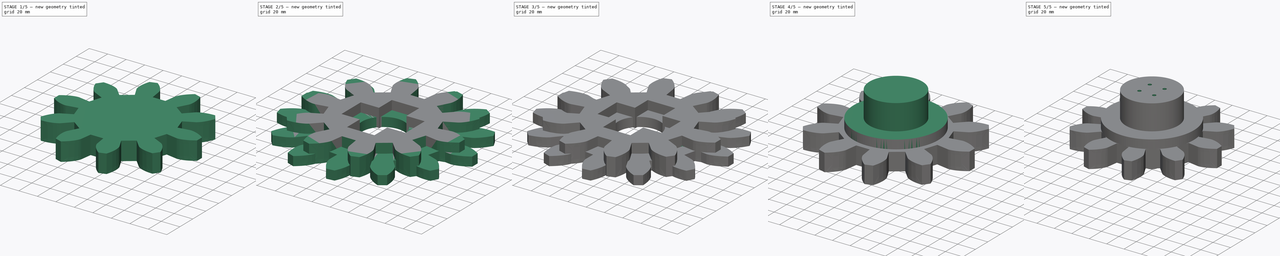
[diagram: build sequence overview — one tinted view per stage of 5, left to right]
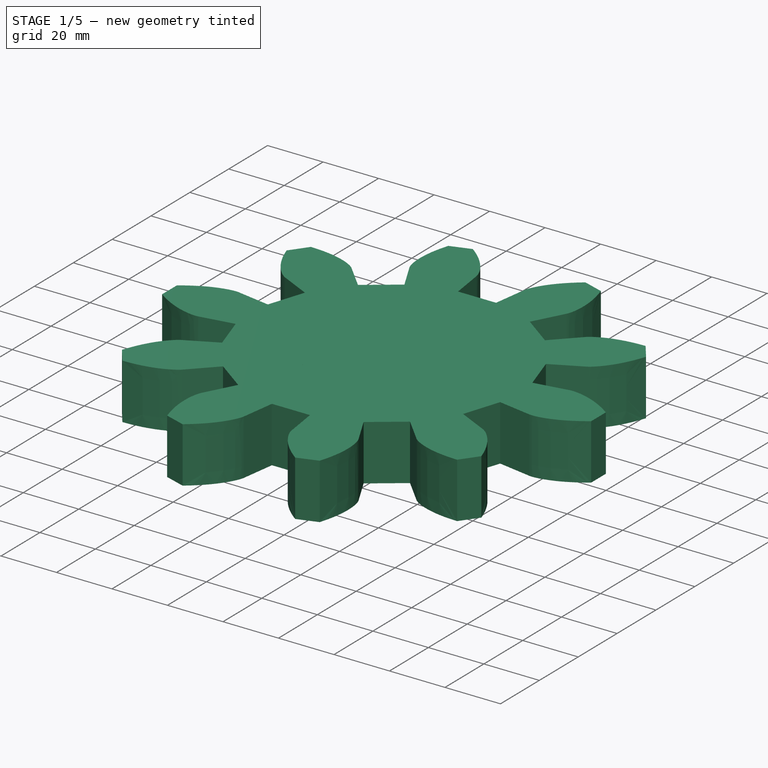
[diagram: stage 1 of 5 — iso view after this stage's code; geometry added in this stage tinted green]
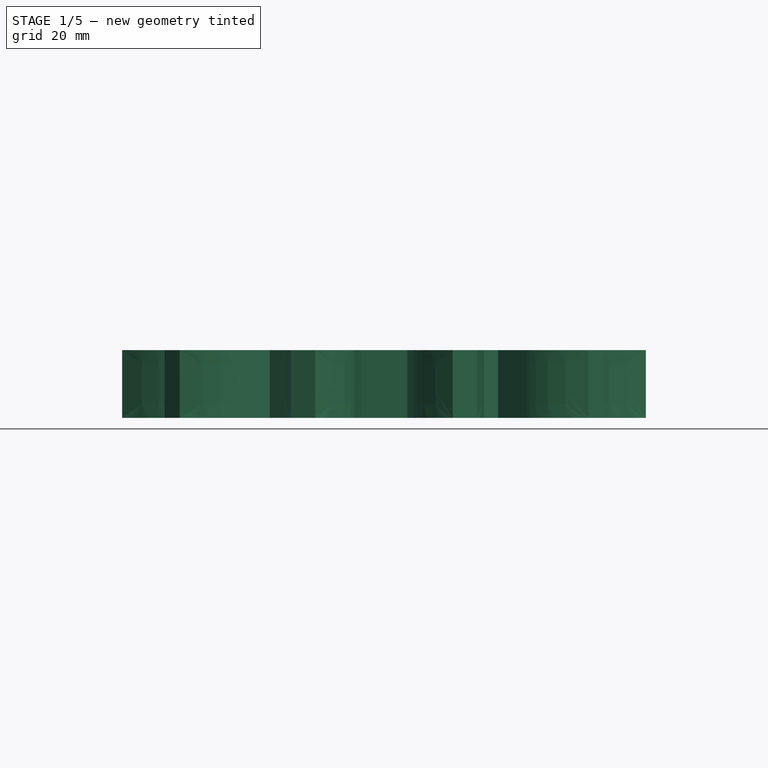
[diagram: stage 1 of 5 — front view after this stage's code; geometry added in this stage tinted green]
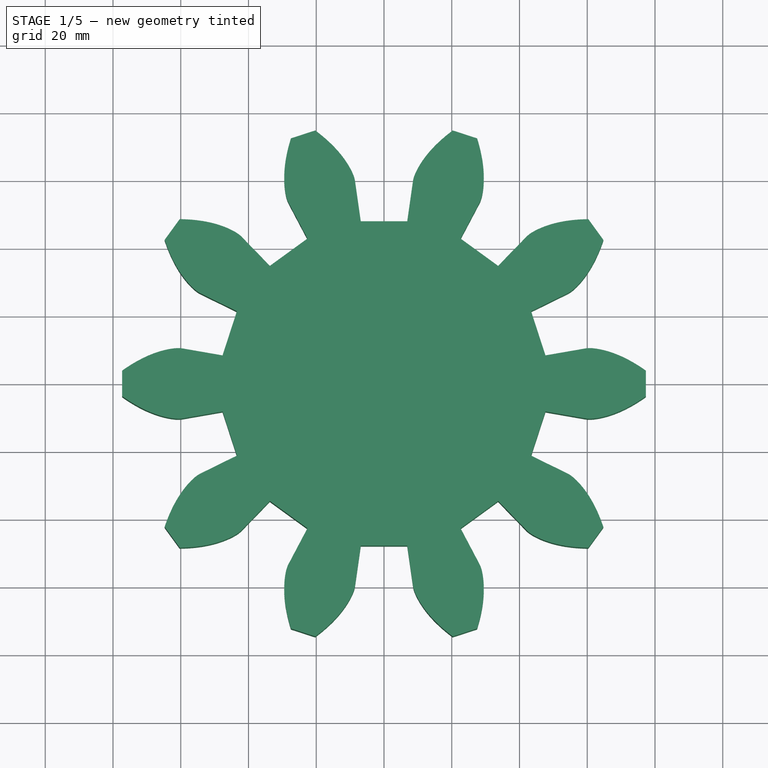
[diagram: stage 1 of 5 — top view after this stage's code; geometry added in this stage tinted green]
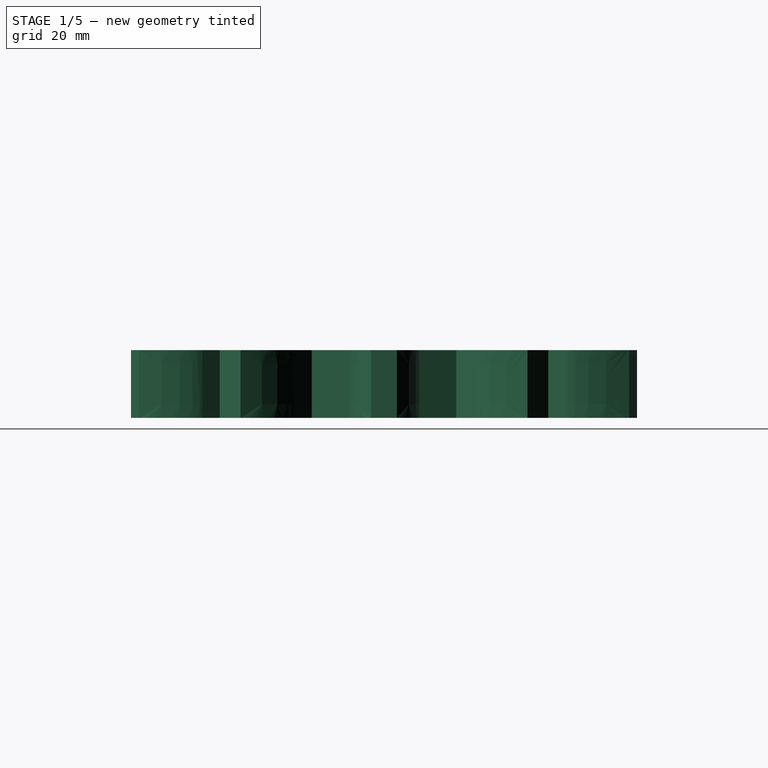
[diagram: stage 1 of 5 — right view after this stage's code; geometry added in this stage tinted green]
FCSTD DOCUMENT  (FreeCAD 0.20R29177 +426 (Git))
Label: motorToGearNewRatio
License: All rights reserved
LicenseURL: http://en.wikipedia.org/wiki/All_rights_reserved
objects: Sketcher::SketchObject×7, Part::Extrusion×7, Part::Cut×6, Part::Box×4, Part::FeaturePython×4, Part::MultiFuse×2, Part::Cylinder×1
note: 31 computed .brp shape members not serialized (recipe doc carries the construction recipe); baked Part::Feature solids carry a one-line shape summary decoded from their .brp

FEATURE [Part::FeaturePython] InvoluteGear002  # WARN: FeaturePython — macro-defined, semantics opaque (R4)
  AttacherType = Attacher::AttachEngine3D
  angular_backlash = 0
  backlash = 0
  beta = 0
  clearance = 0.25
  da = 154.8
  df = 96.75
  double_helix = false
  dw = 129
  head = 0
  head_fillet = 0
  height = 20
  module = 12.9
  numpoints = 6
  pressure_angle = 20
  properties_from_tool = false
  reversed_backlash = false
  root_fillet = 0
  shift = 0
  simple = false
  teeth = 10
  transverse_pitch = 40.5265
  traverse_module = 12.9
  undercut = false
  version = 0.0.4
  expr: angular_backlash = backlash / dw * 360° / pi
FEATURE [Sketcher::SketchObject] Sketch010
  FullyConstrained = true
  MapMode = 5
  Placement = pos=(0,0,0) rot=(1,0,0;3.14159rad)
  Support = -> [InvoluteGear002]
  sketch-geometry (22):
    g0: LineSegment StartX=-35 StartY=-15 StartZ=0 EndX=-35 EndY=0 EndZ=0
    g1: LineSegment StartX=-35 StartY=0 StartZ=0 EndX=-35 EndY=15 EndZ=0
    g2: LineSegment StartX=35 StartY=15 StartZ=0 EndX=35 EndY=0 EndZ=0
    g3: LineSegment StartX=35 StartY=0 StartZ=0 EndX=35 EndY=-15 EndZ=0
    g4: LineSegment StartX=-15 StartY=-35 StartZ=0 EndX=15 EndY=-35 EndZ=0
    g5: LineSegment StartX=15 StartY=35 StartZ=0 EndX=0 EndY=35 EndZ=0
    g6: LineSegment StartX=0 StartY=35 StartZ=0 EndX=-15 EndY=35 EndZ=0
    g7: LineSegment StartX=-15 StartY=35 StartZ=0 EndX=-15 EndY=15 EndZ=0
    g8: LineSegment StartX=-35 StartY=15 StartZ=0 EndX=-15 EndY=15 EndZ=0
    g9: LineSegment StartX=-15 StartY=15 StartZ=0 EndX=0 EndY=15 EndZ=0
    g10: LineSegment StartX=15 StartY=0 StartZ=0 EndX=15 EndY=15 EndZ=0
    g11: LineSegment StartX=15 StartY=15 StartZ=0 EndX=15 EndY=35 EndZ=0
    g12: LineSegment StartX=0 StartY=15 StartZ=0 EndX=15 EndY=15 EndZ=0
    g13: LineSegment StartX=15 StartY=15 StartZ=0 EndX=35 EndY=15 EndZ=0
    g14: LineSegment StartX=-15 StartY=15 StartZ=0 EndX=-15 EndY=-15 EndZ=0
    g15: LineSegment StartX=-15 StartY=-15 StartZ=0 EndX=-15 EndY=-35 EndZ=0
    g16: LineSegment StartX=0 StartY=-15 StartZ=0 EndX=-15 EndY=-15 EndZ=0
    g17: LineSegment StartX=-15 StartY=-15 StartZ=0 EndX=-35 EndY=-15 EndZ=0
    g18: LineSegment StartX=35 StartY=-15 StartZ=0 EndX=15 EndY=-15 EndZ=0
    g19: LineSegment StartX=15 StartY=-15 StartZ=0 EndX=0 EndY=-15 EndZ=0
    g20: LineSegment StartX=15 StartY=-35 StartZ=0 EndX=15 EndY=-15 EndZ=0
    g21: LineSegment StartX=15 StartY=-15 StartZ=0 EndX=15 EndY=0 EndZ=0
  constraints (62):
    c: Coincident(g13,g2)
    c: Coincident(g3,g18)
    c: Coincident(g17,g0)
    c: Coincident(g1,g8)
    c: Coincident(g0,g1)
    c: Vertical(g0)
    c: Vertical(g1)
    c: Coincident(g2,g3)
    c: Vertical(g2)
    c: Vertical(g3)
    c: Coincident(g9,g12)
    c: Coincident(g19,g16)
    c: PointOnObject(g0,g-1)
    c: PointOnObject(g2,g-1)
    c: PointOnObject(g9,g-2)
    c: PointOnObject(g19,g-2)
    c: Equal(g1,g0)
    c: Distance(g1) = 15
    c: Coincident(g4,g20)
    c: Coincident(g11,g5)
    c: Coincident(g6,g7)
    c: Coincident(g15,g4)
    c: Horizontal(g4)
    c: Coincident(g5,g6)
    c: Horizontal(g5)
    c: Horizontal(g6)
    c: Coincident(g21,g10)
    c: PointOnObject(g5,g-2)
    c: PointOnObject(g21,g-1)
    c: Equal(g6,g5)
    c: Equal(g5,g1)
    c: Coincident(g7,g14)
    c: Vertical(g7)
    c: Coincident(g8,g9)
    c: Horizontal(g8)
    c: Horizontal(g9)
    c: Distance(g8,g9) = 35
    c: Coincident(g10,g11)
    c: Vertical(g10)
    c: Vertical(g11)
    c: Coincident(g12,g13)
    c: Horizontal(g12)
    c: Horizontal(g13)
    c: Coincident(g10,g12)
    c: Coincident(g7,g8)
    c: Coincident(g14,g15)
    c: Vertical(g14)
    c: Vertical(g15)
    c: Coincident(g16,g17)
    c: Horizontal(g16)
    c: Horizontal(g17)
    c: Coincident(g18,g19)
    c: Horizontal(g18)
    c: Horizontal(g19)
    c: Coincident(g20,g21)
    c: Vertical(g20)
    c: Vertical(g21)
    c: Coincident(g14,g16)
    c: Coincident(g20,g18)
    c: Equal(g11,g8)
    c: Equal(g13,g8)
    c: Equal(g20,g8)
FEATURE [Part::Extrusion] Extrude010
  Base = -> Sketch010
  Dir = (0,0,-1)
  DirMode = 2
  FaceMakerClass = Part::FaceMakerBullseye
  LengthFwd = 0
  LengthRev = 20
  Solid = true
  Symmetric = false
FEATURE [Part::FeaturePython] InvoluteGear003  # WARN: FeaturePython — macro-defined, semantics opaque (R4)
  AttacherType = Attacher::AttachEngine3D
  angular_backlash = 0
  backlash = 0
  beta = 0
  clearance = 0.25
  da = 172.8
  df = 108
  double_helix = false
  dw = 144
  head = 0
  head_fillet = 0
  height = 20
  module = 14.4
  numpoints = 6
  pressure_angle = 20
  properties_from_tool = false
  reversed_backlash = false
  root_fillet = 0
  shift = 0
  simple = false
  teeth = 10
  transverse_pitch = 45.2389
  traverse_module = 14.4
  undercut = false
  version = 0.0.4
  expr: angular_backlash = backlash / dw * 360° / pi
FEATURE [Sketcher::SketchObject] Sketch011
  FullyConstrained = true
  MapMode = 5
  Placement = pos=(0,0,0) rot=(1,0,0;3.14159rad)
  Support = -> [InvoluteGear003]
  sketch-geometry (22):
    g0: LineSegment StartX=-35 StartY=-15 StartZ=0 EndX=-35 EndY=0 EndZ=0
    g1: LineSegment StartX=-35 StartY=0 StartZ=0 EndX=-35 EndY=15 EndZ=0
    g2: LineSegment StartX=35 StartY=15 StartZ=0 EndX=35 EndY=0 EndZ=0
    g3: LineSegment StartX=35 StartY=0 StartZ=0 EndX=35 EndY=-15 EndZ=0
    g4: LineSegment StartX=-15 StartY=-35 StartZ=0 EndX=15 EndY=-35 EndZ=0
    g5: LineSegment StartX=15 StartY=35 StartZ=0 EndX=0 EndY=35 EndZ=0
    g6: LineSegment StartX=0 StartY=35 StartZ=0 EndX=-15 EndY=35 EndZ=0
    g7: LineSegment StartX=-15 StartY=35 StartZ=0 EndX=-15 EndY=15 EndZ=0
    g8: LineSegment StartX=-35 StartY=15 StartZ=0 EndX=-15 EndY=15 EndZ=0
    g9: LineSegment StartX=-15 StartY=15 StartZ=0 EndX=0 EndY=15 EndZ=0
    g10: LineSegment StartX=15 StartY=0 StartZ=0 EndX=15 EndY=15 EndZ=0
    g11: LineSegment StartX=15 StartY=15 StartZ=0 EndX=15 EndY=35 EndZ=0
    g12: LineSegment StartX=0 StartY=15 StartZ=0 EndX=15 EndY=15 EndZ=0
    g13: LineSegment StartX=15 StartY=15 StartZ=0 EndX=35 EndY=15 EndZ=0
    g14: LineSegment StartX=-15 StartY=15 StartZ=0 EndX=-15 EndY=-15 EndZ=0
    g15: LineSegment StartX=-15 StartY=-15 StartZ=0 EndX=-15 EndY=-35 EndZ=0
    g16: LineSegment StartX=0 StartY=-15 StartZ=0 EndX=-15 EndY=-15 EndZ=0
    g17: LineSegment StartX=-15 StartY=-15 StartZ=0 EndX=-35 EndY=-15 EndZ=0
    g18: LineSegment StartX=35 StartY=-15 StartZ=0 EndX=15 EndY=-15 EndZ=0
    g19: LineSegment StartX=15 StartY=-15 StartZ=0 EndX=0 EndY=-15 EndZ=0
    g20: LineSegment StartX=15 StartY=-35 StartZ=0 EndX=15 EndY=-15 EndZ=0
    g21: LineSegment StartX=15 StartY=-15 StartZ=0 EndX=15 EndY=0 EndZ=0
  constraints (62):
    c: Coincident(g13,g2)
    c: Coincident(g3,g18)
    c: Coincident(g17,g0)
    c: Coincident(g1,g8)
    c: Coincident(g0,g1)
    c: Vertical(g0)
    c: Vertical(g1)
    c: Coincident(g2,g3)
    c: Vertical(g2)
    c: Vertical(g3)
    c: Coincident(g9,g12)
    c: Coincident(g19,g16)
    c: PointOnObject(g0,g-1)
    c: PointOnObject(g2,g-1)
    c: PointOnObject(g9,g-2)
    c: PointOnObject(g19,g-2)
    c: Equal(g1,g0)
    c: Distance(g1) = 15
    c: Coincident(g4,g20)
    c: Coincident(g11,g5)
    c: Coincident(g6,g7)
    c: Coincident(g15,g4)
    c: Horizontal(g4)
    c: Coincident(g5,g6)
    c: Horizontal(g5)
    c: Horizontal(g6)
    c: Coincident(g21,g10)
    c: PointOnObject(g5,g-2)
    c: PointOnObject(g21,g-1)
    c: Equal(g6,g5)
    c: Equal(g5,g1)
    c: Coincident(g7,g14)
    c: Vertical(g7)
    c: Coincident(g8,g9)
    c: Horizontal(g8)
    c: Horizontal(g9)
    c: Distance(g8,g9) = 35
    c: Coincident(g10,g11)
    c: Vertical(g10)
    c: Vertical(g11)
    c: Coincident(g12,g13)
    c: Horizontal(g12)
    c: Horizontal(g13)
    c: Coincident(g10,g12)
    c: Coincident(g7,g8)
    c: Coincident(g14,g15)
    c: Vertical(g14)
    c: Vertical(g15)
    c: Coincident(g16,g17)
    c: Horizontal(g16)
    c: Horizontal(g17)
    c: Coincident(g18,g19)
    c: Horizontal(g18)
    c: Horizontal(g19)
    c: Coincident(g20,g21)
    c: Vertical(g20)
    c: Vertical(g21)
    c: Coincident(g14,g16)
    c: Coincident(g20,g18)
    c: Equal(g11,g8)
    c: Equal(g13,g8)
    c: Equal(g20,g8)
FEATURE [Part::Extrusion] Extrude011
  Base = -> Sketch011
  Dir = (0,0,-1)
  DirMode = 2
  FaceMakerClass = Part::FaceMakerBullseye
  LengthFwd = 0
  LengthRev = 20
  Solid = true
  Symmetric = false
FEATURE [Part::Cut] Cut
  Base = -> InvoluteGear002
  Tool = -> Extrude010
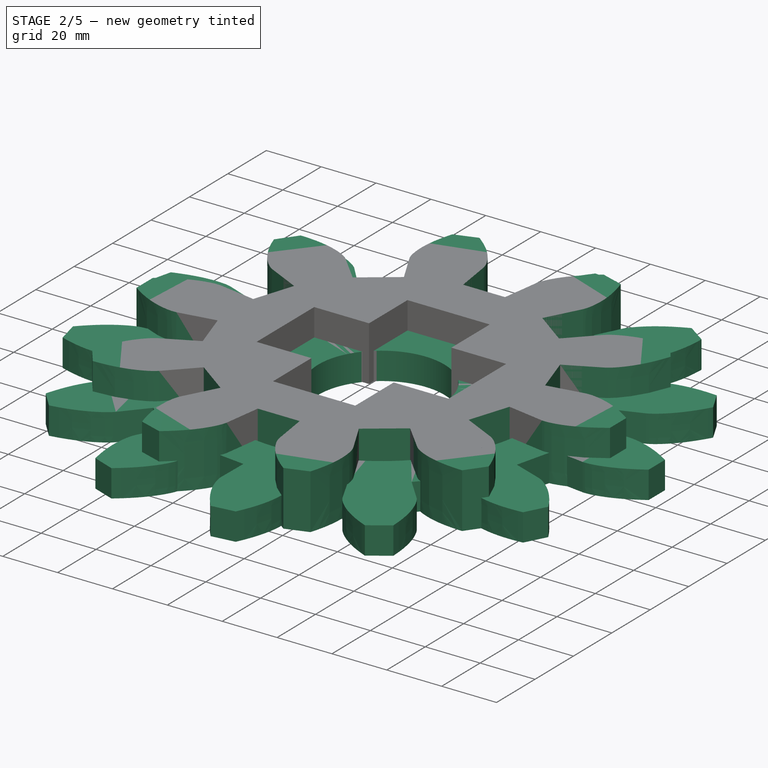
[diagram: stage 2 of 5 — iso view after this stage's code; geometry added in this stage tinted green]
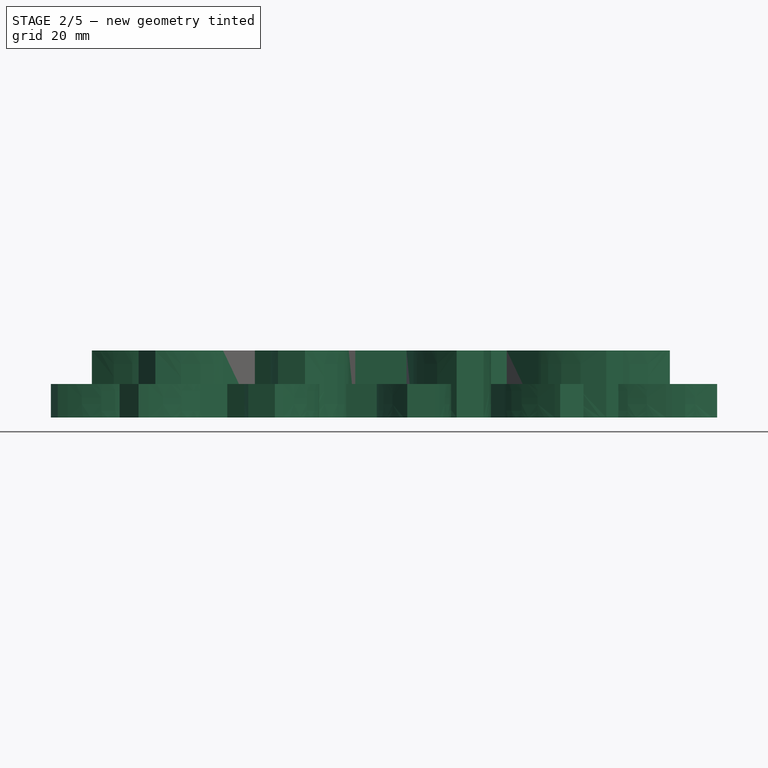
[diagram: stage 2 of 5 — front view after this stage's code; geometry added in this stage tinted green]
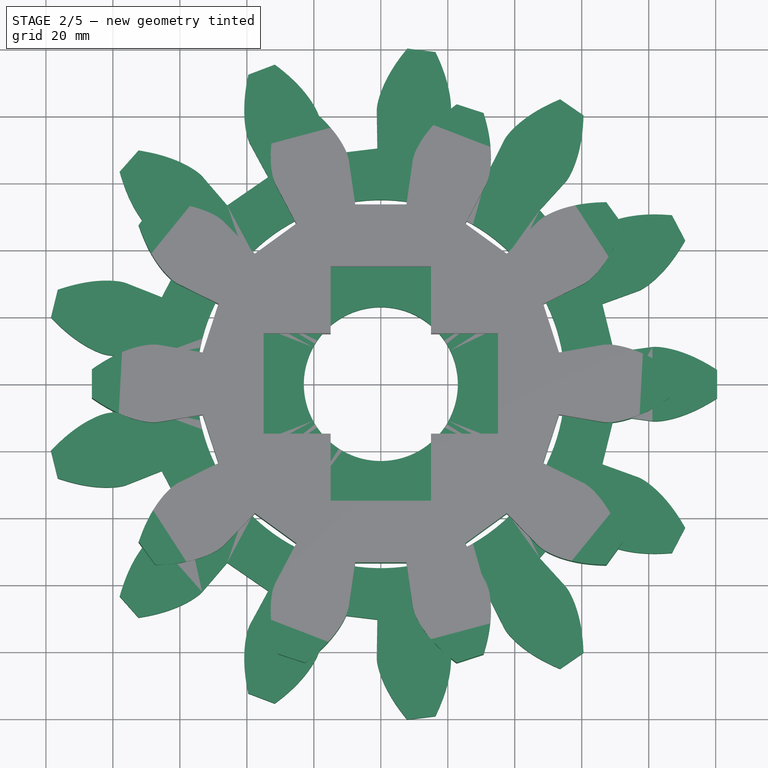
[diagram: stage 2 of 5 — top view after this stage's code; geometry added in this stage tinted green]
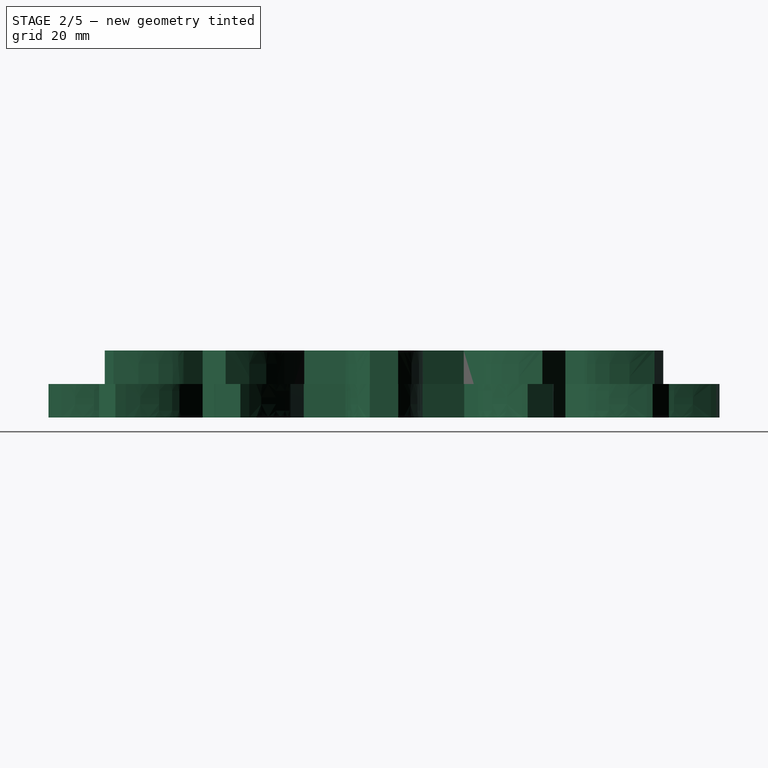
[diagram: stage 2 of 5 — right view after this stage's code; geometry added in this stage tinted green]
FEATURE [Part::Cylinder] Cylinder001
  Angle = 360
  AttacherType = Attacher::AttachEngine3D
  FirstAngle = 0
  Height = 10
  Radius = 55
  SecondAngle = 0
FEATURE [Part::FeaturePython] InvoluteGear001  # WARN: FeaturePython — macro-defined, semantics opaque (R4)
  AttacherType = Attacher::AttachEngine3D
  angular_backlash = 0
  backlash = 0
  beta = 0
  clearance = 0.25
  da = 201
  df = 140.7
  double_helix = false
  dw = 174.2
  head = 0
  head_fillet = 0
  height = 10
  module = 13.4
  numpoints = 6
  pressure_angle = 20
  properties_from_tool = false
  reversed_backlash = false
  root_fillet = 0
  shift = 0
  simple = false
  teeth = 13
  transverse_pitch = 42.0973
  traverse_module = 13.4
  undercut = false
  version = 0.0.4
  expr: angular_backlash = backlash / dw * 360° / pi
FEATURE [Part::Cut] Cut001
  Base = -> InvoluteGear001
  Tool = -> Cylinder001
FEATURE [Part::FeaturePython] Tube001  # WARN: FeaturePython — macro-defined, semantics opaque (R4)
  AttacherType = Attacher::AttachEngine3D
  Height = 10
  InnerRadius = 23
  OuterRadius = 38
FEATURE [Part::Cut] Cut002  label="CrossGear001"
  Base = -> InvoluteGear003
  Tool = -> Extrude011
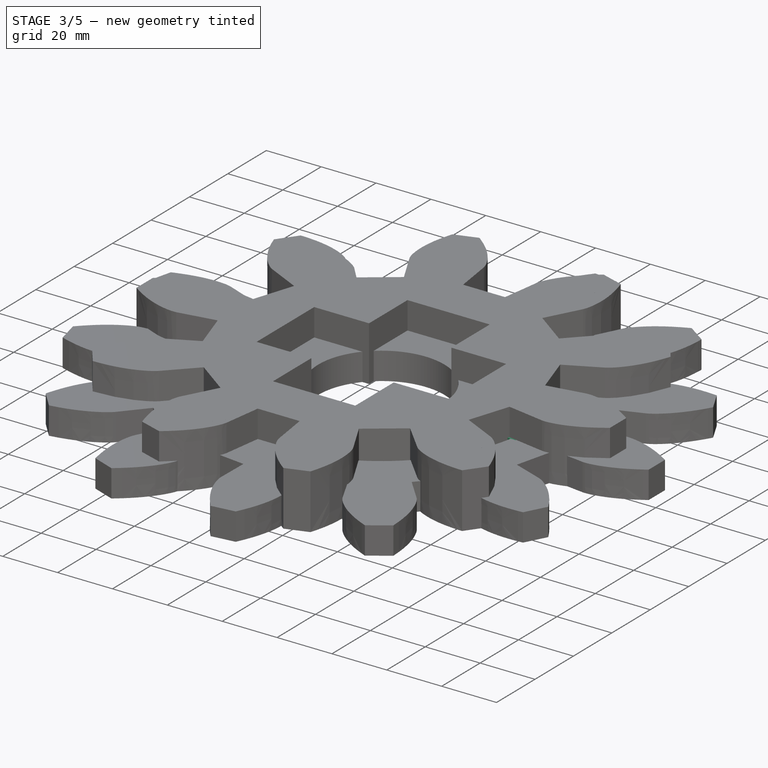
[diagram: stage 3 of 5 — iso view after this stage's code; geometry added in this stage tinted green]
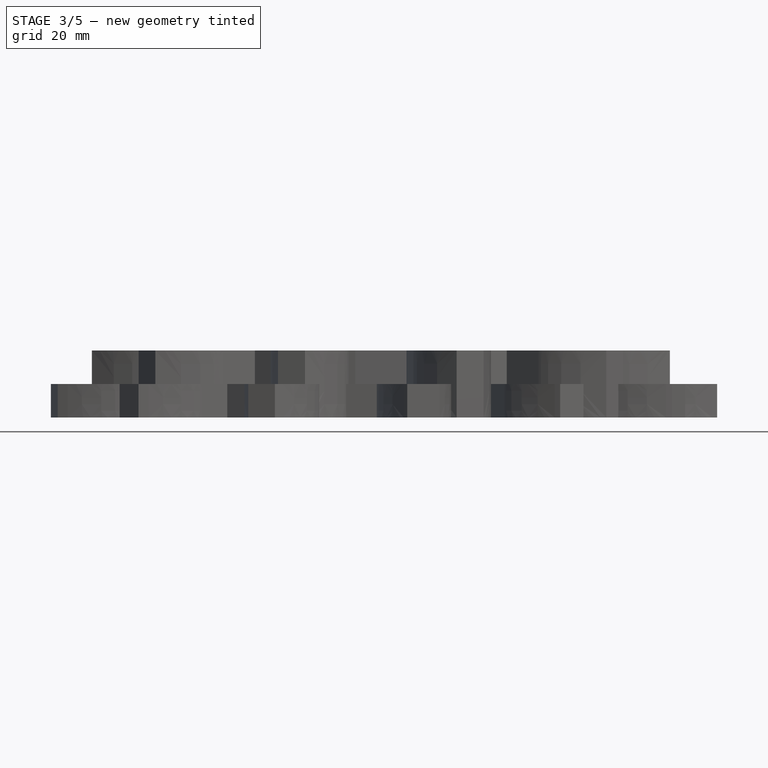
[diagram: stage 3 of 5 — front view after this stage's code; geometry added in this stage tinted green]
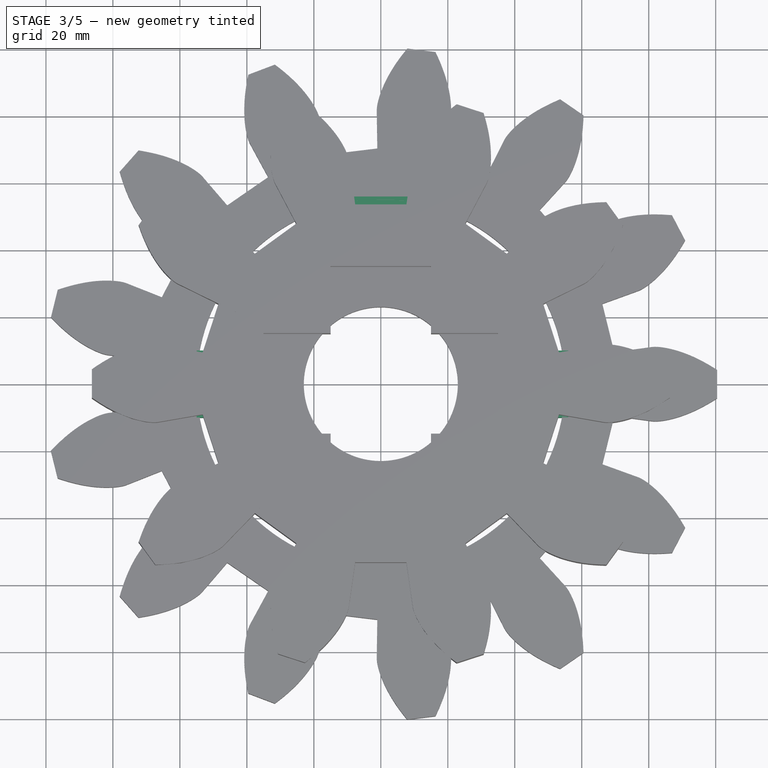
[diagram: stage 3 of 5 — top view after this stage's code; geometry added in this stage tinted green]
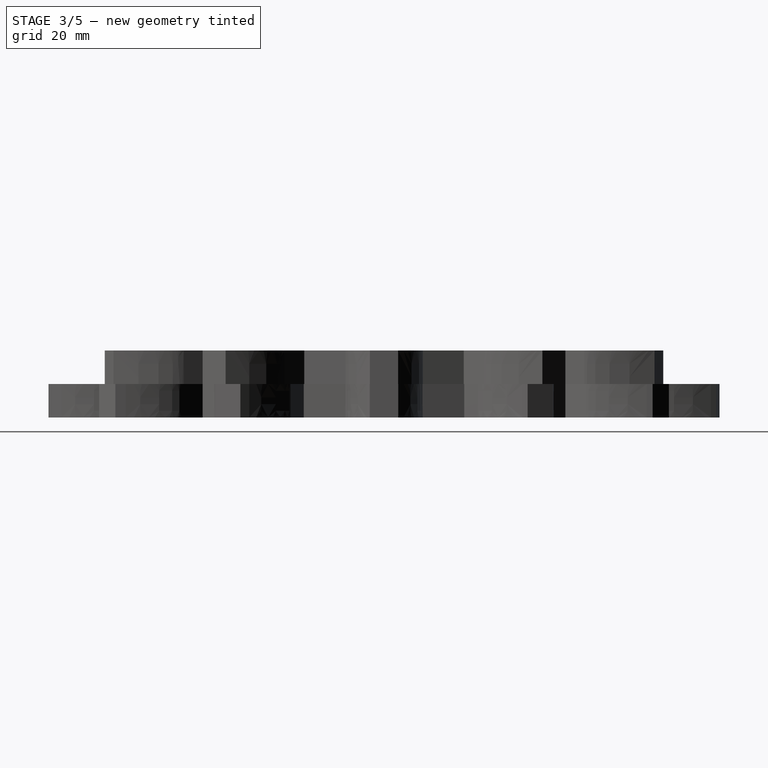
[diagram: stage 3 of 5 — right view after this stage's code; geometry added in this stage tinted green]
FEATURE [Part::Box] Box004  label="Cube004"
  AttacherType = Attacher::AttachEngine3D
  Height = 10
  Length = 20
  Placement = pos=(-10,-55,0) rot=(0,0,1;0rad)
  Width = 20
FEATURE [Part::Box] Box005  label="Cube005"
  AttacherType = Attacher::AttachEngine3D
  Height = 10
  Length = 20
  Placement = pos=(-10,36,0) rot=(0,0,1;0rad)
  Width = 20
FEATURE [Part::Box] Box006  label="Cube006"
  AttacherType = Attacher::AttachEngine3D
  Height = 10
  Length = 20
  Placement = pos=(-55,-10,0) rot=(0,0,1;0rad)
  Width = 20
FEATURE [Part::Box] Box007  label="Cube007"
  AttacherType = Attacher::AttachEngine3D
  Height = 10
  Length = 20
  Placement = pos=(36,-10,0) rot=(0,0,1;0rad)
  Width = 20
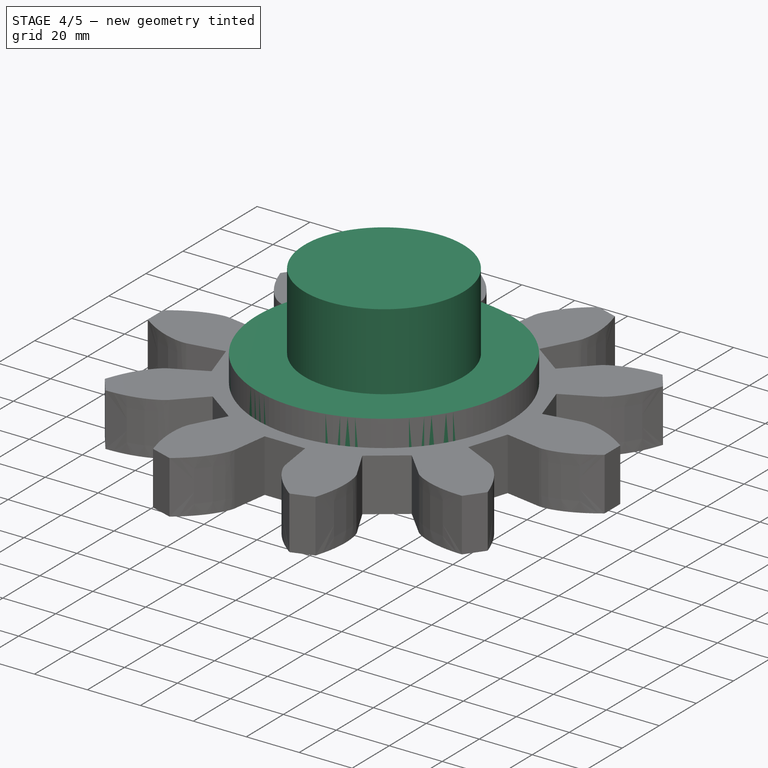
[diagram: stage 4 of 5 — iso view after this stage's code; geometry added in this stage tinted green]
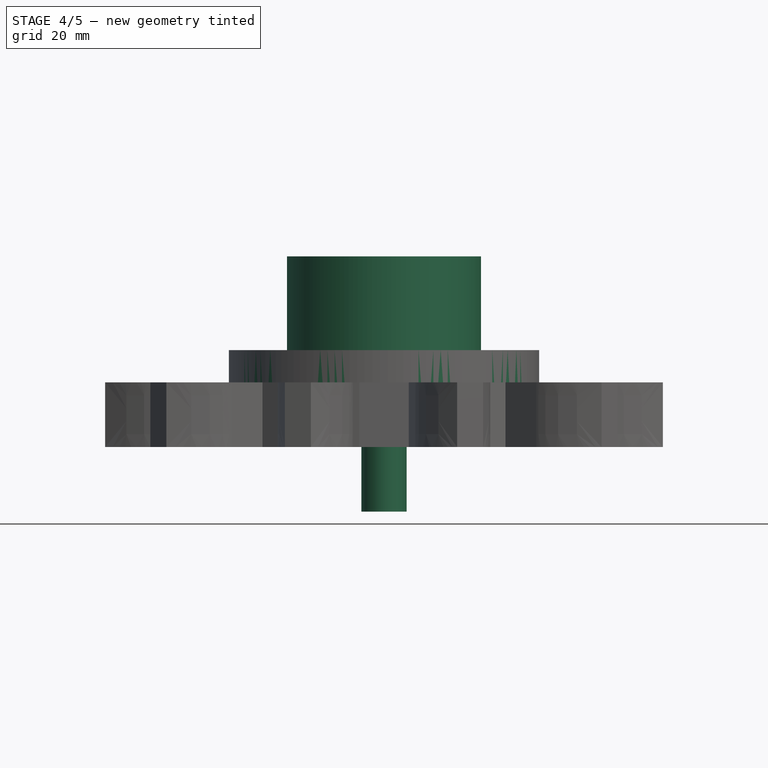
[diagram: stage 4 of 5 — front view after this stage's code; geometry added in this stage tinted green]
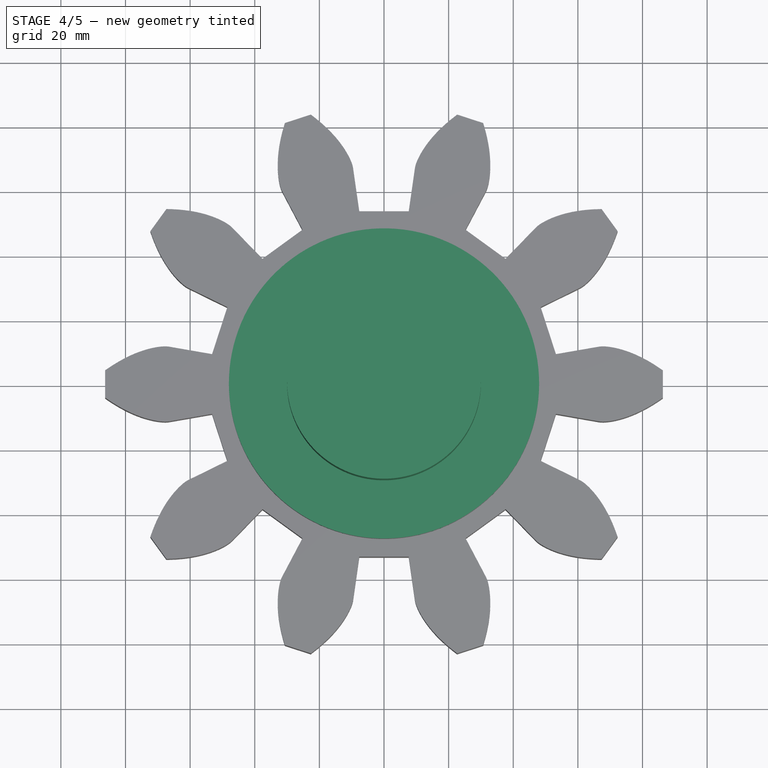
[diagram: stage 4 of 5 — top view after this stage's code; geometry added in this stage tinted green]
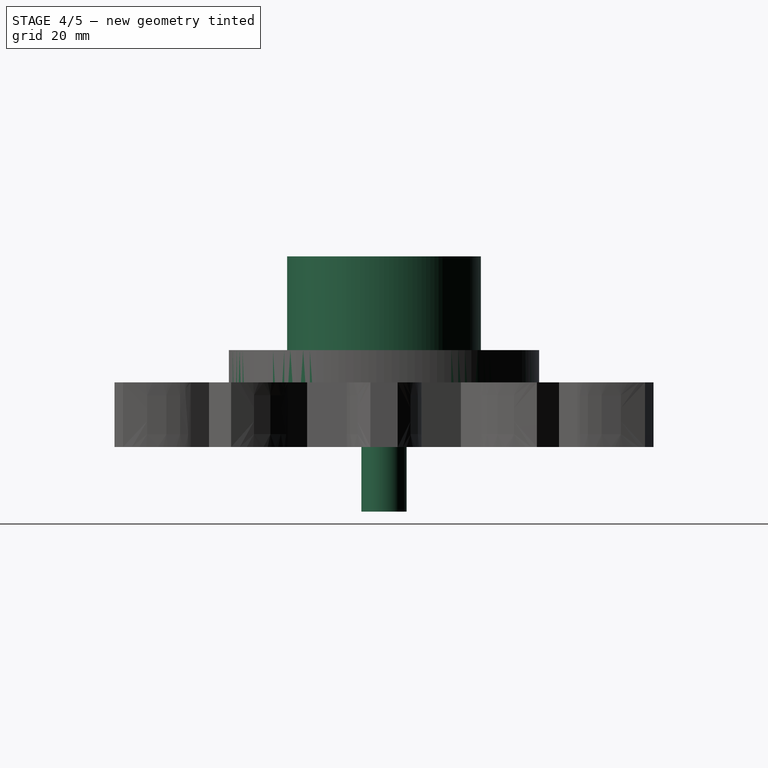
[diagram: stage 4 of 5 — right view after this stage's code; geometry added in this stage tinted green]
FEATURE [Part::MultiFuse] Fusion001  label="MotorGear"
  Shapes = -> [Tube001,Cut001,Box004,Box005,Box006,Box007]
FEATURE [Sketcher::SketchObject] Sketch006
  ExternalGeometry = -> [Fusion001]
  FullyConstrained = true
  MapMode = 5
  Placement = pos=(0,0,10) rot=(0,0,1;0rad)
  Support = -> [Fusion001]
  sketch-geometry (1):
    g0: Circle CenterX=0 CenterY=0 CenterZ=0 NormalX=0 NormalY=0 NormalZ=1 AngleXU=0 Radius=48
  constraints (2):
    c: Coincident(g0,g-3)
    c: Radius(g0) = 48
FEATURE [Part::Extrusion] Extrude006  label="gearHolder"
  Base = -> Sketch006
  Dir = (0,0,1)
  DirMode = 2
  FaceMakerClass = Part::FaceMakerBullseye
  LengthFwd = 20
  LengthRev = 10
  Solid = true
  Symmetric = false
FEATURE [Sketcher::SketchObject] Sketch007
  FullyConstrained = true
  MapMode = 5
  Placement = pos=(0,0,30) rot=(0,0,1;0rad)
  Support = -> [Extrude006]
  sketch-geometry (1):
    g0: Circle CenterX=0 CenterY=0 CenterZ=0 NormalX=0 NormalY=0 NormalZ=1 AngleXU=0 Radius=30
  constraints (2):
    c: Coincident(g0,g-1)
    c: Radius(g0) = 30
FEATURE [Part::Extrusion] Extrude007  label="motorShaftHolder"
  Base = -> Sketch007
  Dir = (0,0,1)
  DirMode = 2
  FaceMakerClass = Part::FaceMakerBullseye
  LengthFwd = 29
  LengthRev = 0
  Solid = true
  Symmetric = false
FEATURE [Sketcher::SketchObject] Sketch008
  FullyConstrained = true
  MapMode = 5
  Placement = pos=(0,0,0) rot=(1,0,0;3.14159rad)
  Support = -> [Extrude006]
  sketch-geometry (1):
    g0: Circle CenterX=0 CenterY=0 CenterZ=0 NormalX=0 NormalY=0 NormalZ=1 AngleXU=0 Radius=7
  constraints (2):
    c: Coincident(g0,g-1)
    c: Radius(g0) = 7
FEATURE [Part::Extrusion] Extrude008  label="encoderHolder"
  Base = -> Sketch008
  Dir = (0,0,-1)
  DirMode = 2
  FaceMakerClass = Part::FaceMakerBullseye
  LengthFwd = 20
  LengthRev = 0
  Solid = true
  Symmetric = false
FEATURE [Part::MultiFuse] Fusion  label="Body"
  Shapes = -> [Extrude006,Extrude007,Extrude008]
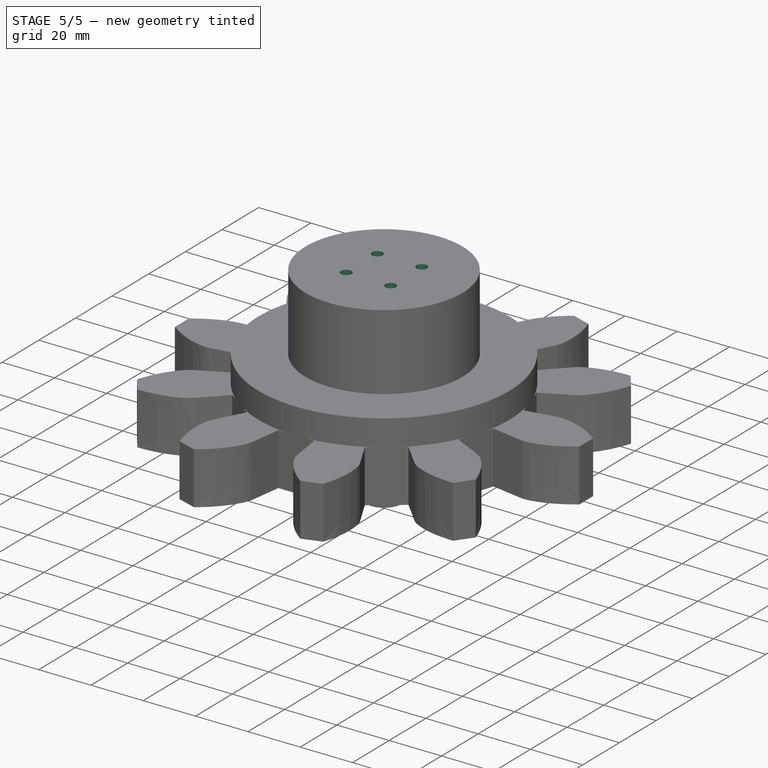
[diagram: stage 5 of 5 — iso view after this stage's code; geometry added in this stage tinted green]
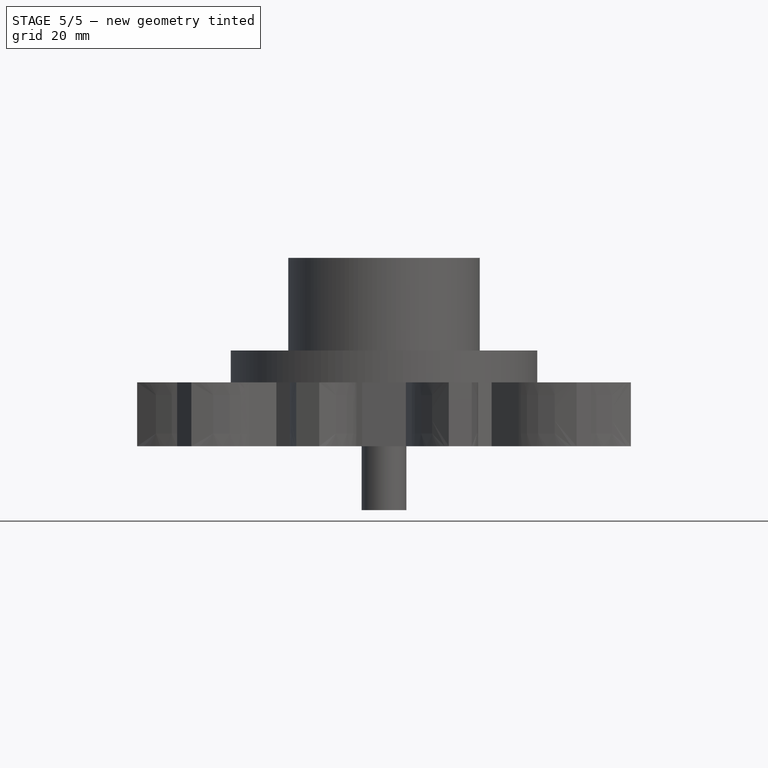
[diagram: stage 5 of 5 — front view after this stage's code; geometry added in this stage tinted green]
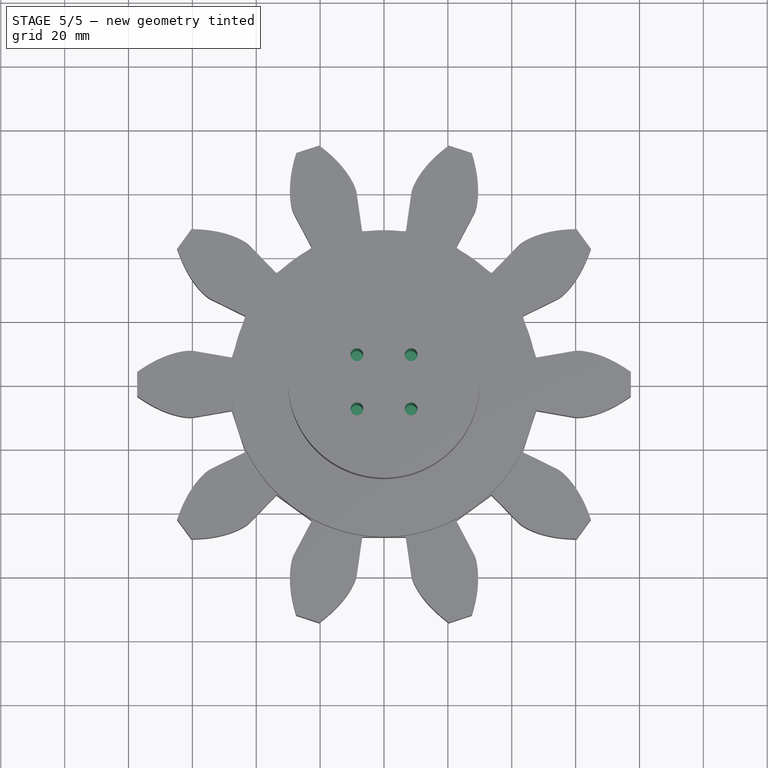
[diagram: stage 5 of 5 — top view after this stage's code; geometry added in this stage tinted green]
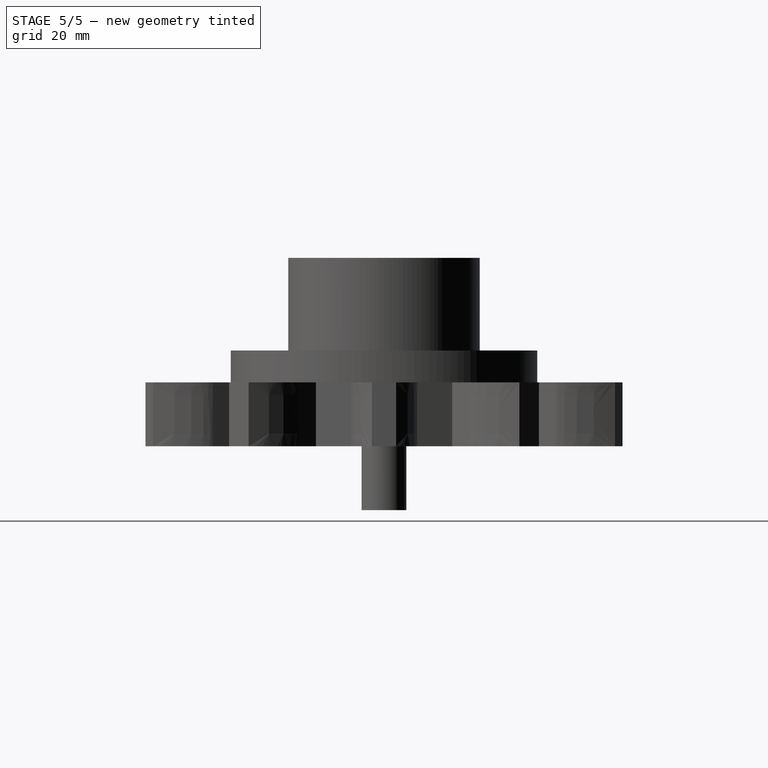
[diagram: stage 5 of 5 — right view after this stage's code; geometry added in this stage tinted green]
FEATURE [Sketcher::SketchObject] Sketch009
  FullyConstrained = true
  MapMode = 5
  Placement = pos=(0,0,-20) rot=(1,0,0;3.14159rad)
  sketch-geometry (5):
    g0: Circle CenterX=0 CenterY=0 CenterZ=0 NormalX=0 NormalY=0 NormalZ=1 AngleXU=0 Radius=3.5
    g1: ArcOfCircle CenterX=0 CenterY=0 CenterZ=0 NormalX=0 NormalY=0 NormalZ=1 AngleXU=0 Radius=3.5 StartAngle=1.28104 EndAngle=5.00214
    g2: LineSegment StartX=1 StartY=3.3541 StartZ=0 EndX=1 EndY=0 EndZ=0
    g3: LineSegment StartX=1 StartY=-1e-16 StartZ=0 EndX=1 EndY=-3.3541 EndZ=0
    g4: LineSegment StartX=1 StartY=-1e-16 StartZ=0 EndX=-3.5 EndY=-1e-16 EndZ=0
  constraints (14):
    c: Coincident(g0,g-1)
    c: Radius(g0) = 3.5
    c: Coincident(g1,g0)
    c: PointOnObject(g1,g0)
    c: Coincident(g2,g1)
    c: Coincident(g3,g1)
    c: Coincident(g2,g3)
    c: Equal(g2,g3)
    c: Parallel(g2,g3)
    c: Coincident(g4,g2)
    c: PointOnObject(g4,g1)
    c: Horizontal(g4)
    c: Distance(g4) = 4.5
    c: Perpendicular(g4,g2)
FEATURE [Part::Extrusion] Extrude009  label="PotentiometerDShaft"
  Base = -> Sketch009
  Dir = (0,0,-1)
  DirMode = 2
  FaceMakerClass = Part::FaceMakerBullseye
  LengthFwd = 0
  LengthRev = 6
  Solid = true
  Symmetric = false
FEATURE [Sketcher::SketchObject] Sketch  label="FlangeSketch"
  FullyConstrained = true
  MapMode = 5
  Placement = pos=(0,0,59) rot=(0,0,1;0rad)
  Support = -> [Extrude007]
  sketch-geometry (12):
    g0: Circle CenterX=8.48528 CenterY=8.48528 CenterZ=0 NormalX=0 NormalY=0 NormalZ=1 AngleXU=0 Radius=2
    g1: LineSegment StartX=8.48528 StartY=0 StartZ=0 EndX=8.48528 EndY=8.48528 EndZ=0
    g2: LineSegment StartX=8.48528 StartY=8.48528 StartZ=0 EndX=0 EndY=8.48528 EndZ=0
    g3: Circle CenterX=8.48528 CenterY=-8.48528 CenterZ=0 NormalX=0 NormalY=0 NormalZ=1 AngleXU=0 Radius=2
    g4: LineSegment StartX=8.48528 StartY=0 StartZ=0 EndX=8.48528 EndY=-8.48528 EndZ=0
    g5: LineSegment StartX=8.48528 StartY=-8.48528 StartZ=0 EndX=0 EndY=-8.48528 EndZ=0
    g6: Circle CenterX=-8.48528 CenterY=-8.48528 CenterZ=0 NormalX=0 NormalY=0 NormalZ=1 AngleXU=0 Radius=2
    g7: Circle CenterX=-8.48528 CenterY=8.48528 CenterZ=0 NormalX=0 NormalY=0 NormalZ=1 AngleXU=0 Radius=2
    g8: LineSegment StartX=-8.48528 StartY=8.48528 StartZ=0 EndX=0 EndY=8.48528 EndZ=0
    g9: LineSegment StartX=0 StartY=-8.48528 StartZ=0 EndX=-8.48528 EndY=-8.48528 EndZ=0
    g10: LineSegment StartX=-8.48528 StartY=-8.48528 StartZ=0 EndX=-8.48528 EndY=0 EndZ=0
    g11: LineSegment StartX=-8.48528 StartY=8.48528 StartZ=0 EndX=-8.48528 EndY=0 EndZ=0
  constraints (34):
    c: Distance(g-1,g0) = 12
    c: Diameter(g0) = 4
    c: PointOnObject(g1,g-1)
    c: Coincident(g1,g0)
    c: Vertical(g1)
    c: Coincident(g2,g0)
    c: PointOnObject(g2,g-2)
    c: Horizontal(g2)
    c: Equal(g1,g2)
    c: PointOnObject(g4,g-1)
    c: Coincident(g4,g3)
    c: Vertical(g4)
    c: Coincident(g5,g3)
    c: PointOnObject(g5,g-2)
    c: Horizontal(g5)
    c: Coincident(g8,g7)
    c: PointOnObject(g8,g-2)
    c: Horizontal(g8)
    c: Diameter(g3) = 4
    c: Diameter(g6) = 4
    c: Diameter(g7) = 4
    c: Distance(g-1,g7) = 12
    c: Distance(g-1,g6) = 12
    c: Distance(g-1,g3) = 12
    c: Equal(g5,g4)
    c: Coincident(g9,g5)
    c: Coincident(g9,g6)
    c: Horizontal(g9)
    c: Coincident(g10,g6)
    c: PointOnObject(g10,g-1)
    c: Vertical(g10)
    c: Coincident(g11,g7)
    c: Coincident(g11,g10)
    c: Vertical(g11)
FEATURE [Part::Extrusion] Extrude  label="ScrewHoles"
  Base = -> Sketch
  Dir = (0,0,1)
  DirMode = 2
  FaceMakerClass = Part::FaceMakerBullseye
  LengthFwd = 0
  LengthRev = 50
  Solid = true
  Symmetric = false
FEATURE [Part::Cut] Cut003  label="BodyWithPlus"
  Base = -> Fusion
  Tool = -> Cut002
FEATURE [Part::Cut] Cut004
  Base = -> Cut003
  Tool = -> Extrude009
FEATURE [Part::Cut] Cut005  label="MotorToGearCross"
  Base = -> Cut004
  Tool = -> Extrude
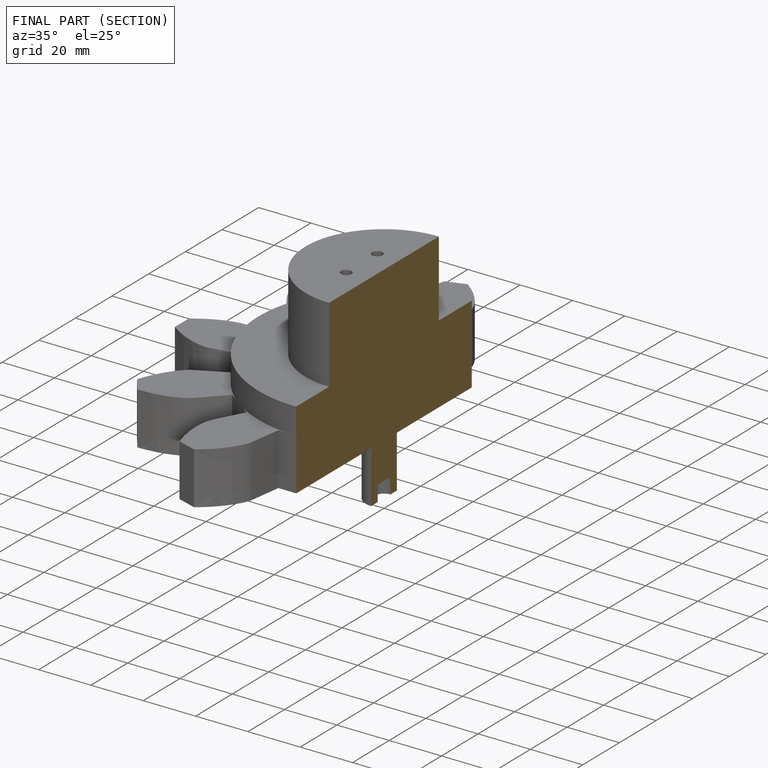
[diagram: finished part — half-section view (interior)]
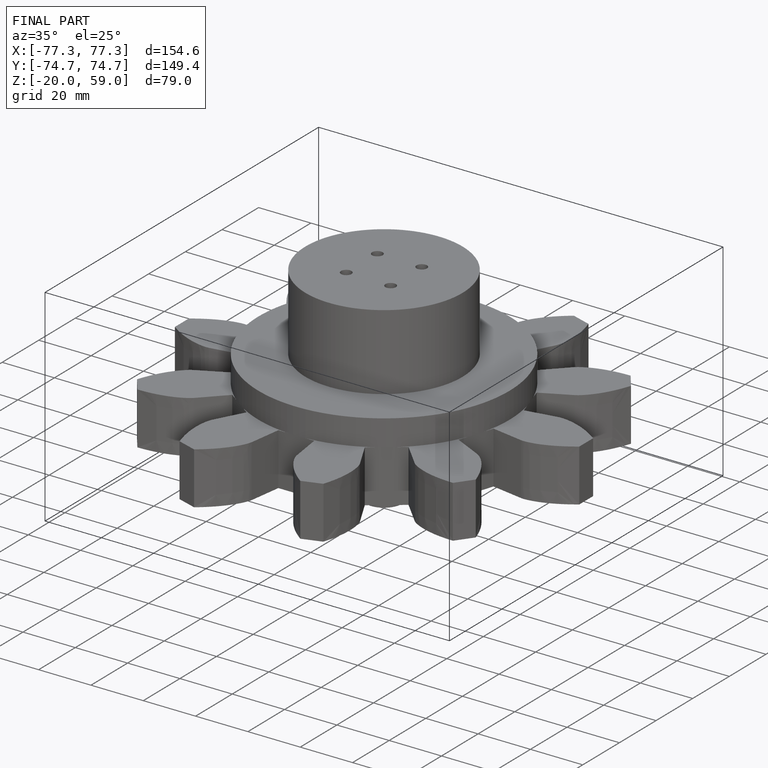
[diagram: finished part — iso view with bounding-box wireframe]
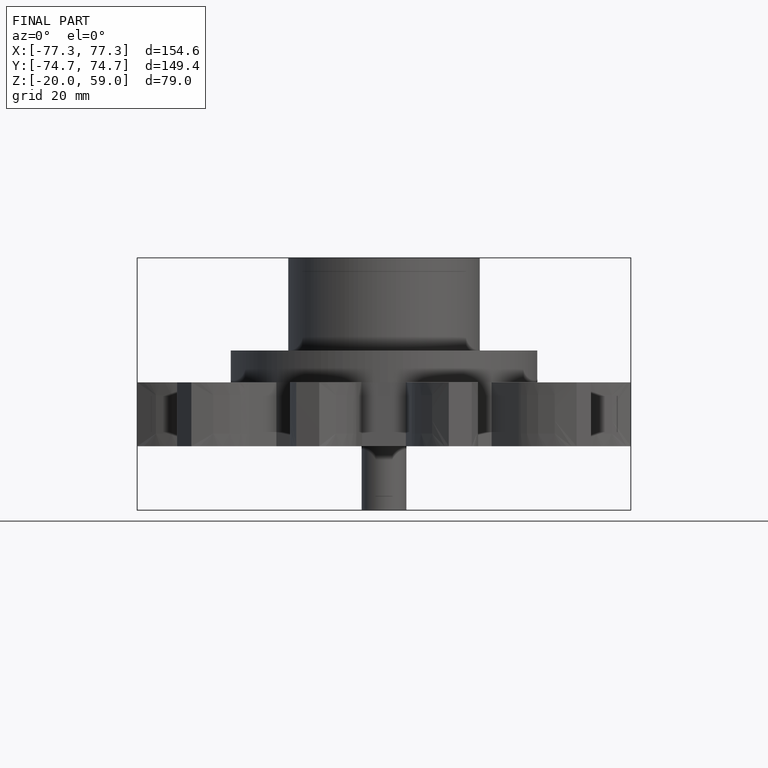
[diagram: finished part — front view with bounding-box wireframe]
